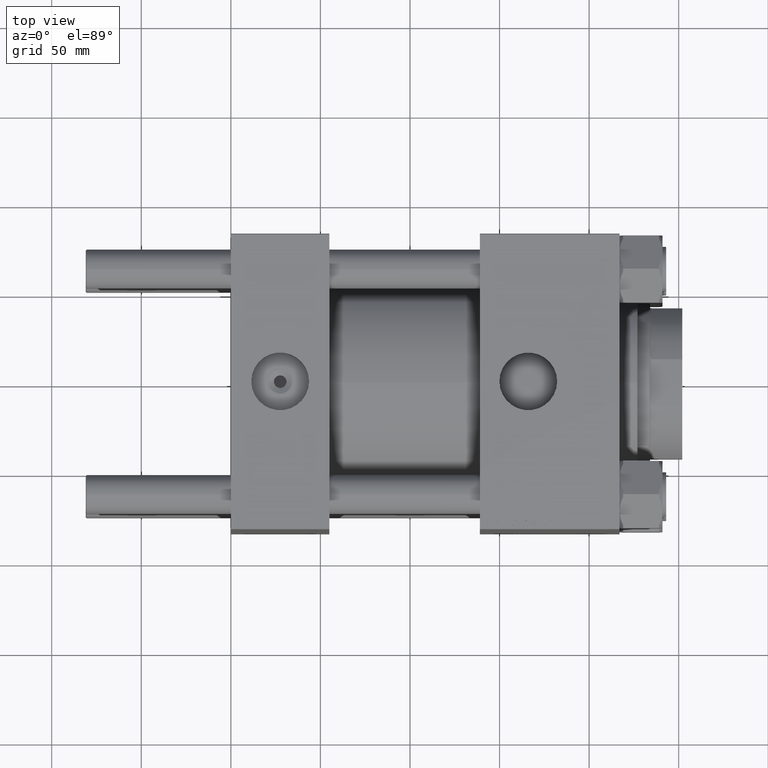
[diagram: clean part render]
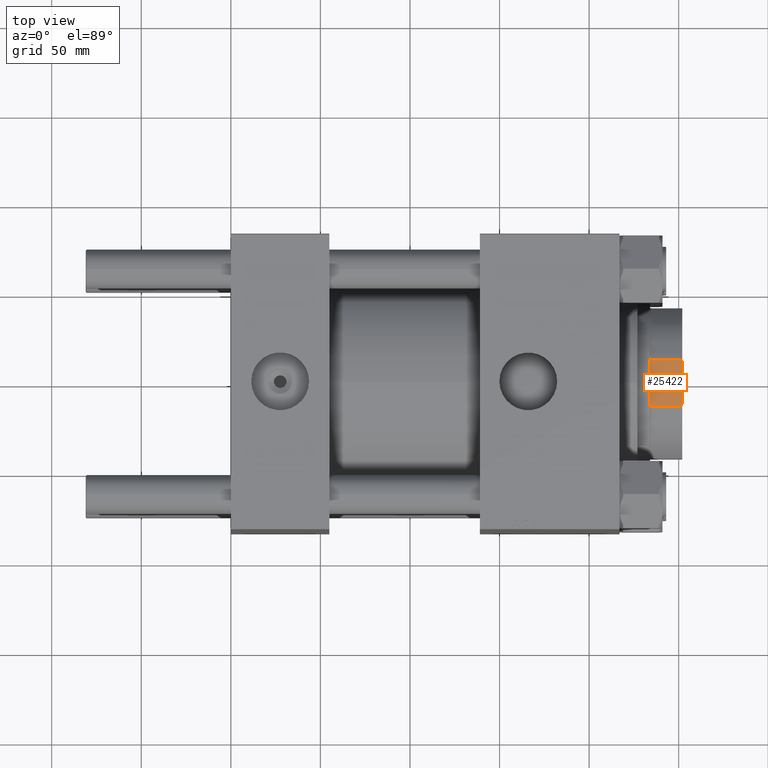
[diagram: same view with one face highlighted and labeled with its STEP entity id]
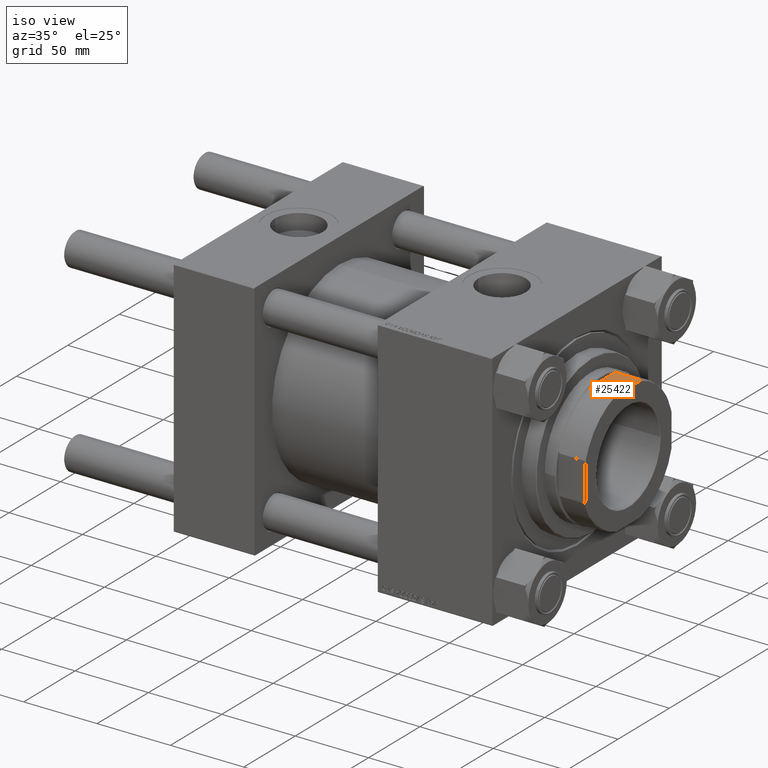
[diagram: same view with one face highlighted and labeled with its STEP entity id]
A machine part, top view. The second image highlights one B-rep face of the part: STEP entity #25422.
A second angle (iso view) of the same face is appended — the face is thin or edge-on in the first view.
In plain terms, the highlighted planar face has unit normal (-0, 0, -1).
Its self-contained STEP definition (entity closure, byte-faithful):
#747 = CARTESIAN_POINT ( 'NONE',  ( 14.70544116985251826, -42.00000000000000711, 179.0000000000000000 ) ) ;
#2304 = VERTEX_POINT ( 'NONE', #45975 ) ;
#3122 = AXIS2_PLACEMENT_3D ( 'NONE', #27816, #43311, #20945 ) ;
#4562 = EDGE_CURVE ( 'NONE', #25760, #2304, #28603, .T. ) ;
#4679 = CARTESIAN_POINT ( 'NONE',  ( 13.11487704860396164, -42.00000000000000711, -0.001000000000001000089 ) ) ;
#4929 = CARTESIAN_POINT ( 'NONE',  ( -14.70544116985254846, -42.00000000000000711, 179.0000000000000000 ) ) ;
#5137 = ORIENTED_EDGE ( 'NONE', *, *, #13009, .T. ) ;
#5643 = CARTESIAN_POINT ( 'NONE',  ( 14.70544116985251826, -42.00000000000000711, 179.0000000000000000 ) ) ;
#6419 = CARTESIAN_POINT ( 'NONE',  ( -13.11487704860396164, -42.00000000000000711, 196.4999999999997158 ) ) ;
#7206 = ORIENTED_EDGE ( 'NONE', *, *, #32818, .F. ) ;
#8488 = FACE_OUTER_BOUND ( 'NONE', #21747, .T. ) ;
#8506 = DIRECTION ( 'NONE',  ( -0.000000000000000000, -0.000000000000000000, 1.000000000000000000 ) ) ;
#11439 = CARTESIAN_POINT ( 'NONE',  ( -13.11487704860396164, -42.00000000000000711, 196.4999999999997158 ) ) ;
#11865 = VERTEX_POINT ( 'NONE', #747 ) ;
#12575 = B_SPLINE_CURVE_WITH_KNOTS ( 'NONE', 3,
 ( #26263, #25763, #30332, #45086 ),
 .UNSPECIFIED., .F., .F.,
 ( 4, 4 ),
 ( 0.1441993541697251247, 0.1458616311433946211 ),
 .UNSPECIFIED. ) ;
#13009 = EDGE_CURVE ( 'NONE', #29210, #11865, #45740, .T. ) ;
#15785 = B_SPLINE_CURVE_WITH_KNOTS ( 'NONE', 3,
 ( #5643, #25460, #17096, #17343 ),
 .UNSPECIFIED., .F., .F.,
 ( 4, 4 ),
 ( 0.1921110922802836130, 0.1937661417806191277 ),
 .UNSPECIFIED. ) ;
#16443 = VERTEX_POINT ( 'NONE', #16572 ) ;
#16572 = CARTESIAN_POINT ( 'NONE',  ( -13.11487704860396164, -42.00000000000000711, 179.4999999999999147 ) ) ;
#17096 = CARTESIAN_POINT ( 'NONE',  ( 13.64897575764567783, -42.00000000000000711, 179.3408036613430738 ) ) ;
#17343 = CARTESIAN_POINT ( 'NONE',  ( 13.11487704860396164, -42.00000000000000711, 179.4999999999998579 ) ) ;
#18331 = CARTESIAN_POINT ( 'NONE',  ( 12.52105423598749212, -42.00000000000000711, 196.6769980267298195 ) ) ;
#19208 = LINE ( 'NONE', #23017, #42280 ) ;
#19558 = VECTOR ( 'NONE', #8506, 1000.000000000000000 ) ;
#19647 = B_SPLINE_CURVE_WITH_KNOTS ( 'NONE', 3,
 ( #42448, #41950, #27203, #11439 ),
 .UNSPECIFIED., .F., .F.,
 ( 4, 4 ),
 ( 0.000000000000000000, 0.001858641690139720398 ),
 .UNSPECIFIED. ) ;
#20220 = VECTOR ( 'NONE', #31574, 1000.000000000000000 ) ;
#20945 = DIRECTION ( 'NONE',  ( 0.000000000000000000, -0.000000000000000000, 1.000000000000000000 ) ) ;
#21220 = CARTESIAN_POINT ( 'NONE',  ( 13.11487704860396164, -42.00000000000000711, 179.4999999999998579 ) ) ;
#21747 = EDGE_LOOP ( 'NONE', ( #44364, #39311, #7206, #43423, #39555, #34348, #5137, #41965 ) ) ;
#22274 = DIRECTION ( 'NONE',  ( 1.000000000000000000, 0.000000000000000000, 0.000000000000000000 ) ) ;
#22520 = VERTEX_POINT ( 'NONE', #21220 ) ;
#22759 = CARTESIAN_POINT ( 'NONE',  ( -11.32475165290533425, -42.00000000000000000, 196.9999999999999716 ) ) ;
#23017 = CARTESIAN_POINT ( 'NONE',  ( -41.99999999999999289, -42.00000000000000000, 196.9999999999999716 ) ) ;
#25422 = ADVANCED_FACE ( 'NONE', ( #8488 ), #47623, .F. ) ;
#25460 = CARTESIAN_POINT ( 'NONE',  ( 14.17906395644905615, -42.00000000000000711, 179.1739462729180730 ) ) ;
#25760 = VERTEX_POINT ( 'NONE', #41613 ) ;
#25763 = CARTESIAN_POINT ( 'NONE',  ( -13.64652296432347001, -42.00000000000000711, 179.3415347541350684 ) ) ;
#25955 = CARTESIAN_POINT ( 'NONE',  ( 13.11487704860396164, -42.00000000000000711, 196.4999999999997442 ) ) ;
#26263 = CARTESIAN_POINT ( 'NONE',  ( -13.11487704860396164, -42.00000000000000711, 179.4999999999999147 ) ) ;
#26905 = VERTEX_POINT ( 'NONE', #22759 ) ;
#26923 = CARTESIAN_POINT ( 'NONE',  ( -41.99999999999999289, -42.00000000000000000, 179.0000000000000000 ) ) ;
#27203 = CARTESIAN_POINT ( 'NONE',  ( -12.52105423598741574, -42.00000000000000000, 196.6769980267297910 ) ) ;
#27243 = EDGE_CURVE ( 'NONE', #16443, #29210, #12575, .T. ) ;
#27816 = CARTESIAN_POINT ( 'NONE',  ( -41.99999999999999289, -42.00000000000000000, 196.9999999999999716 ) ) ;
#28332 = EDGE_CURVE ( 'NONE', #16443, #32933, #34892, .T. ) ;
#28603 = B_SPLINE_CURVE_WITH_KNOTS ( 'NONE', 3,
 ( #25955, #18331, #37650, #45274 ),
 .UNSPECIFIED., .F., .F.,
 ( 4, 4 ),
 ( 1.387778780781445676E-17, 0.001858641690139490113 ),
 .UNSPECIFIED. ) ;
#29210 = VERTEX_POINT ( 'NONE', #4929 ) ;
#30332 = CARTESIAN_POINT ( 'NONE',  ( -14.17668678407866700, -42.00000000000000711, 179.1747318317595159 ) ) ;
#31342 = EDGE_CURVE ( 'NONE', #26905, #32933, #19647, .T. ) ;
#31574 = DIRECTION ( 'NONE',  ( -0.000000000000000000, -0.000000000000000000, 1.000000000000000000 ) ) ;
#32818 = EDGE_CURVE ( 'NONE', #26905, #2304, #19208, .T. ) ;
#32933 = VERTEX_POINT ( 'NONE', #6419 ) ;
#34348 = ORIENTED_EDGE ( 'NONE', *, *, #27243, .T. ) ;
#34643 = CARTESIAN_POINT ( 'NONE',  ( -13.11487704860396164, -42.00000000000000711, -0.001000000000001000089 ) ) ;
#34892 = LINE ( 'NONE', #34643, #20220 ) ;
#36677 = EDGE_CURVE ( 'NONE', #22520, #25760, #39525, .T. ) ;
#37650 = CARTESIAN_POINT ( 'NONE',  ( 11.92440761087188505, -42.00000000000000000, 196.8438860965251820 ) ) ;
#38366 = DIRECTION ( 'NONE',  ( 1.000000000000000000, 0.000000000000000000, 0.000000000000000000 ) ) ;
#39311 = ORIENTED_EDGE ( 'NONE', *, *, #4562, .T. ) ;
#39525 = LINE ( 'NONE', #4679, #19558 ) ;
#39555 = ORIENTED_EDGE ( 'NONE', *, *, #28332, .F. ) ;
#40198 = VECTOR ( 'NONE', #38366, 1000.000000000000000 ) ;
#41613 = CARTESIAN_POINT ( 'NONE',  ( 13.11487704860396164, -42.00000000000000711, 196.4999999999997442 ) ) ;
#41950 = CARTESIAN_POINT ( 'NONE',  ( -11.92440761087176071, -42.00000000000000000, 196.8438860965251536 ) ) ;
#41965 = ORIENTED_EDGE ( 'NONE', *, *, #42459, .T. ) ;
#42280 = VECTOR ( 'NONE', #22274, 1000.000000000000000 ) ;
#42448 = CARTESIAN_POINT ( 'NONE',  ( -11.32475165290533425, -42.00000000000000000, 196.9999999999999716 ) ) ;
#42459 = EDGE_CURVE ( 'NONE', #11865, #22520, #15785, .T. ) ;
#43311 = DIRECTION ( 'NONE',  ( 0.000000000000000000, 1.000000000000000000, 0.000000000000000000 ) ) ;
#43423 = ORIENTED_EDGE ( 'NONE', *, *, #31342, .T. ) ;
#44364 = ORIENTED_EDGE ( 'NONE', *, *, #36677, .T. ) ;
#45086 = CARTESIAN_POINT ( 'NONE',  ( -14.70544116985254846, -42.00000000000000711, 179.0000000000000000 ) ) ;
#45274 = CARTESIAN_POINT ( 'NONE',  ( 11.32475165290554564, -42.00000000000000000, 196.9999999999999716 ) ) ;
#45740 = LINE ( 'NONE', #26923, #40198 ) ;
#45975 = CARTESIAN_POINT ( 'NONE',  ( 11.32475165290554564, -42.00000000000000000, 196.9999999999999716 ) ) ;
#47623 = PLANE ( 'NONE',  #3122 ) ;